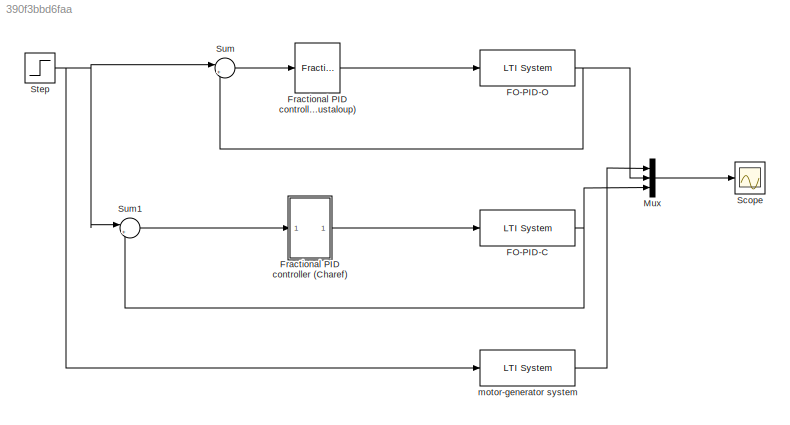
MODEL slx_390f3bbd6faa
KIND model
CONFIG AbsTol = auto
CONFIG EnableMultiTasking = off
CONFIG FixedStep = auto
CONFIG MaxStep = auto
CONFIG MinStep = auto
CONFIG RelTol = 1e-3
CONFIG SampleTimeConstraint = Unconstrained
CONFIG SolverName = VariableStepAuto
CONFIG StartTime = 0.0
CONFIG StopTime = 500
BLOCK [Reference] FO-PID-C  REF=cstblocks/LTI System
  SourceBlock = cstblocks/LTI System
  SourceType = LTI Block
BLOCK [Reference] FO-PID-O  REF=cstblocks/LTI System
  SourceBlock = cstblocks/LTI System
  SourceType = LTI Block
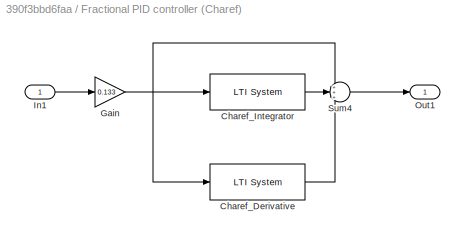
BLOCK [SubSystem] Fractional PID controller (Charef)
BLOCK [Reference] Fractional PID controller (Charef)/Charef_Derivative  REF=cstblocks/LTI System
  SourceBlock = cstblocks/LTI System
  SourceType = LTI Block
BLOCK [Reference] Fractional PID controller (Charef)/Charef_Integrator  REF=cstblocks/LTI System
  SourceBlock = cstblocks/LTI System
  SourceType = LTI Block
BLOCK [Gain] Fractional PID controller (Charef)/Gain
  Gain = 0.133
BLOCK [Inport] Fractional PID controller (Charef)/In1
BLOCK [Outport] Fractional PID controller (Charef)/Out1
BLOCK [Sum] Fractional PID controller (Charef)/Sum4
  Inputs = +++
BLOCK [Reference] Fractional PID controller (Oustaloup)  REF=fod/Fractional PID  (lib defined in slx_5cb2d42c7bef)
controller
  SourceBlock = fod/Fractional PID\ncontroller
  SourceProductName = FOMCON Toolbox
  SourceType = Fractional PID
BLOCK [Mux] Mux
  DisplayOption = bar
  Inputs = 3
BLOCK [Scope] Scope
  Floating = off
  NumInputPorts = 1
  ScopeSpecificationString = Simulink.scopes.TimeScopeBlockCfg('CurrentConfiguration', extmgr.ConfigurationSet(extmgr.Configuration('Core','General UI',true),extmgr.Configuration('Core','Source UI',true),extmgr.Configuration('Sources','WiredSimulink',true,'DataLogging',true,'DataLoggingSaveFormat','Array'),extmgr.Configuration('Visuals','Time Domain',true,'SerializedDisplays',{struct('MinYLimReal','-0.13375','MaxYLimReal','1....<+1554ch>
BLOCK [Step] Step
  SampleTime = 0
  Time = 0
BLOCK [Sum] Sum
  Inputs = |+-
BLOCK [Sum] Sum1
  Inputs = |+-
BLOCK [Reference] motor-generator system  REF=cstblocks/LTI System
  SourceBlock = cstblocks/LTI System
  SourceType = LTI Block
NET FO-PID-C:1 -> Mux:3, Sum1:2
NET FO-PID-O:1 -> Mux:2, Sum:2
LINE Fractional PID controller (Charef)/Charef_Derivative:1 -> Fractional PID controller (Charef)/Sum4:3
LINE Fractional PID controller (Charef)/Charef_Integrator:1 -> Fractional PID controller (Charef)/Sum4:2
NET Fractional PID controller (Charef)/Gain:1 -> Fractional PID controller (Charef)/Charef_Derivative:1, Fractional PID controller (Charef)/Charef_Integrator:1, Fractional PID controller (Charef)/Sum4:1
LINE Fractional PID controller (Charef)/In1:1 -> Fractional PID controller (Charef)/Gain:1
LINE Fractional PID controller (Charef)/Sum4:1 -> Fractional PID controller (Charef)/Out1:1
LINE Fractional PID controller (Charef):1 -> FO-PID-C:1
LINE Fractional PID controller (Oustaloup):1 -> FO-PID-O:1
LINE Mux:1 -> Scope:1
NET Step:1 -> Sum1:1, Sum:1, motor-generator system:1
LINE Sum1:1 -> Fractional PID controller (Charef):1
LINE Sum:1 -> Fractional PID controller (Oustaloup):1
LINE motor-generator system:1 -> Mux:1
note: NET lines group one-source signal fan-out (src -> all destinations, sorted); 1:1 wires keep LINE
